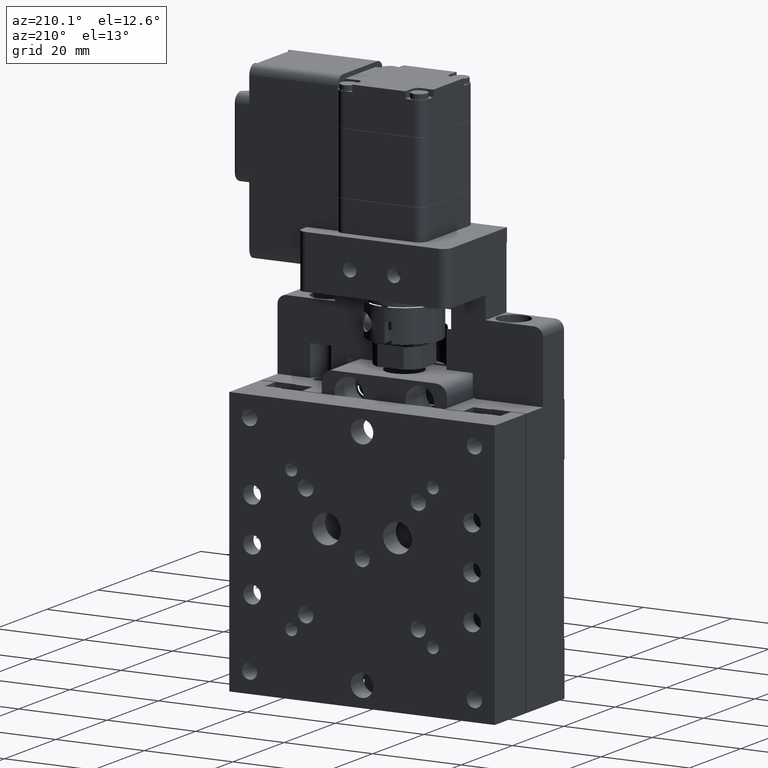
[diagram: clean part render]
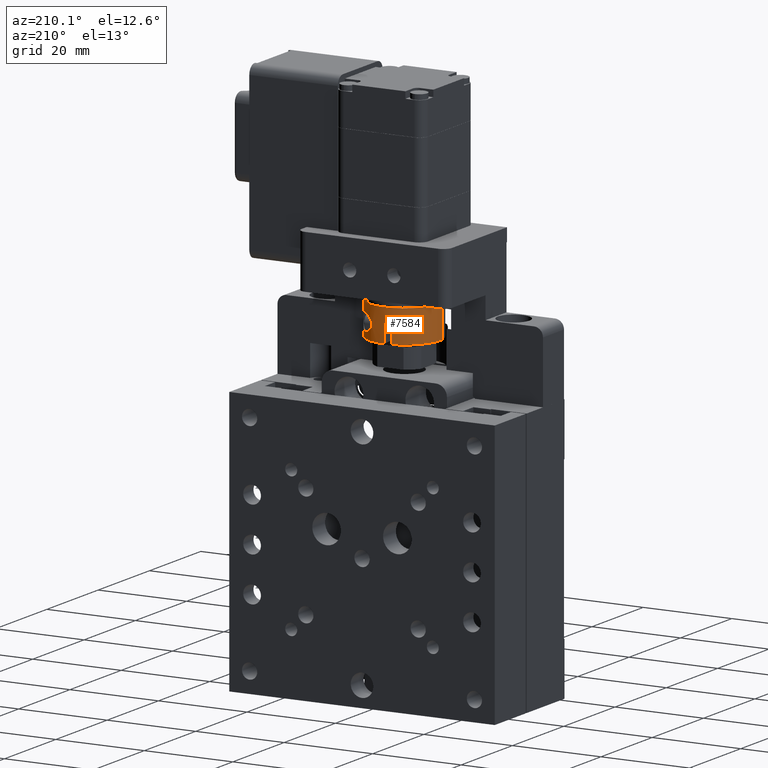
[diagram: same view with one face highlighted and labeled with its STEP entity id]
A machine part, auxiliary view. The second image highlights one B-rep face of the part: STEP entity #7584.
In plain terms, the highlighted cylindrical surface (partial cylindrical patch) has radius 8 mm, axis along (0, 0, 1).
Its self-contained STEP definition (entity closure, byte-faithful):
#605 = EDGE_CURVE ( 'NONE', #15255, #21160, #18002, .T. ) ;
#651 = AXIS2_PLACEMENT_3D ( 'NONE', #15535, #1704, #15754 ) ;
#671 = CARTESIAN_POINT ( 'NONE',  ( 2.563843015603363800, 3.671227825216857500, 109.1907045658230800 ) ) ;
#772 = EDGE_CURVE ( 'NONE', #4824, #15255, #820, .T. ) ;
#820 = CIRCLE ( 'NONE', #651, 8.000000000000016000 ) ;
#963 = CARTESIAN_POINT ( 'NONE',  ( 3.253231977934332600, 3.021636686349431100, 105.2500000000000600 ) ) ;
#1027 = CARTESIAN_POINT ( 'NONE',  ( -2.744601018819476900, 5.550351525083199200, 108.3500000000000100 ) ) ;
#1704 = DIRECTION ( 'NONE',  ( 0.0000000000000000000, 0.0000000000000000000, 1.000000000000000000 ) ) ;
#2147 = DIRECTION ( 'NONE',  ( 0.9936223791558217400, 0.1127588916260015600, 0.0000000000000000000 ) ) ;
#2299 = CARTESIAN_POINT ( 'NONE',  ( 1.796676726505589000, 4.247165923261738000, 105.6016043665611900 ) ) ;
#2332 = AXIS2_PLACEMENT_3D ( 'NONE', #7176, #8939, #12258 ) ;
#2370 = CARTESIAN_POINT ( 'NONE',  ( 0.5104007205627034700, 4.926269031218111200, 107.5862108928385400 ) ) ;
#2431 = CARTESIAN_POINT ( 'NONE',  ( 4.122356141375333600, 1.903070950409198300, 108.6508475646448800 ) ) ;
#2441 = CARTESIAN_POINT ( 'NONE',  ( -4.235034587553214700, 5.381213187644196000, 103.8500000000000100 ) ) ;
#2447 = CARTESIAN_POINT ( 'NONE',  ( 2.931823030202483700, 3.341293861722737000, 109.2500000000000100 ) ) ;
#2511 = CARTESIAN_POINT ( 'NONE',  ( 3.700058127775599700, 2.494682663363746200, 109.0878850605104300 ) ) ;
#2533 = CARTESIAN_POINT ( 'NONE',  ( 1.300210327585593600, 4.542574221805415900, 108.5703845569273500 ) ) ;
#2586 = CARTESIAN_POINT ( 'NONE',  ( 4.376827804189023400, 1.481605095224330700, 106.5562442289124200 ) ) ;
#2658 = CARTESIAN_POINT ( 'NONE',  ( 3.999341066104749500, 2.087248801137584000, 108.8273643018022200 ) ) ;
#2858 = DIRECTION ( 'NONE',  ( 0.9936223791558217400, 0.1127588916260015600, 0.0000000000000000000 ) ) ;
#3234 = VERTEX_POINT ( 'NONE', #1027 ) ;
#3704 = DIRECTION ( 'NONE',  ( 0.0000000000000000000, 0.0000000000000000000, 1.000000000000000000 ) ) ;
#4151 = CARTESIAN_POINT ( 'NONE',  ( 1.064482738544114700, 4.668697525048448100, 108.3735737157988400 ) ) ;
#4217 = CARTESIAN_POINT ( 'NONE',  ( 3.249499228880445400, 3.019907286267183600, 109.2406583743950500 ) ) ;
#4233 = CARTESIAN_POINT ( 'NONE',  ( 0.5427153638027482100, 4.912296348114718800, 106.8450221219715700 ) ) ;
#4295 = CARTESIAN_POINT ( 'NONE',  ( 0.6497537051098806200, 4.866086929647885900, 107.8871845753727000 ) ) ;
#4361 = CARTESIAN_POINT ( 'NONE',  ( 3.049655712054435000, 3.224103402299449700, 105.2500000000000100 ) ) ;
#4446 = CARTESIAN_POINT ( 'NONE',  ( 4.400439075495540000, 1.439068104143726500, 106.6923359942051700 ) ) ;
#4462 = EDGE_LOOP ( 'NONE', ( #6522, #16403, #18524, #11677, #12328, #14592, #15713, #5128 ) ) ;
#4525 = CARTESIAN_POINT ( 'NONE',  ( 4.438506499181726500, 1.369654998452614700, 107.5413333498952300 ) ) ;
#4824 = VERTEX_POINT ( 'NONE', #2441 ) ;
#4838 = VERTEX_POINT ( 'NONE', #22177 ) ;
#5128 = ORIENTED_EDGE ( 'NONE', *, *, #20611, .T. ) ;
#5152 = CARTESIAN_POINT ( 'NONE',  ( -10.54069863205410600, -3.350258678993689500, 111.2399457046751200 ) ) ;
#5436 = FACE_BOUND ( 'NONE', #21433, .T. ) ;
#5457 = VECTOR ( 'NONE', #12682, 1000.000000000000000 ) ;
#5590 = B_SPLINE_CURVE_WITH_KNOTS ( 'NONE', 3,
 ( #9600, #13226, #4217, #18358, #11376, #2511, #7767, #20305, #2658, #2431, #9753, #7831, #15090, #20222, #4525, #22085, #13148, #4446, #2586, #15017, #14946, #16794, #16866, #9521, #18597, #6142, #963, #4361 ),
 .UNSPECIFIED., .F., .F.,
 ( 4, 2, 2, 2, 2, 2, 2, 2, 2, 2, 2, 2, 2, 4 ),
 ( 0.007976545025443277500, 0.008402092913100485700, 0.008827640800757692200, 0.009253188688414900500, 0.009678736576072108700, 0.01010428446372931700, 0.01052983235138652500, 0.01138092812670094200, 0.01180647601435812900, 0.01223202390201531500, 0.01265757178967250400, 0.01308311967732969000, 0.01393421545264404000, 0.01478531122795839100 ),
 .UNSPECIFIED. ) ;
#5695 = CARTESIAN_POINT ( 'NONE',  ( -2.591719598807531900, -2.448187545985677900, 212.6852357320099100 ) ) ;
#5834 = LINE ( 'NONE', #7271, #17720 ) ;
#5856 = CARTESIAN_POINT ( 'NONE',  ( 2.811163861606882800, 3.461295402713917600, 105.2500000000000300 ) ) ;
#5920 = CARTESIAN_POINT ( 'NONE',  ( 0.7386206334630214300, 4.826566174171474300, 106.4846763492306800 ) ) ;
#6142 = CARTESIAN_POINT ( 'NONE',  ( 3.444350193660930000, 2.809242118754128100, 105.2874801711436100 ) ) ;
#6350 = DIRECTION ( 'NONE',  ( 0.0000000000000000000, 0.0000000000000000000, 1.000000000000000000 ) ) ;
#6382 = ORIENTED_EDGE ( 'NONE', *, *, #21702, .F. ) ;
#6522 = ORIENTED_EDGE ( 'NONE', *, *, #772, .T. ) ;
#6666 = AXIS2_PLACEMENT_3D ( 'NONE', #13415, #11797, #2858 ) ;
#7176 = CARTESIAN_POINT ( 'NONE',  ( -2.591719598807531900, -2.448187545985677900, 111.2399457046751200 ) ) ;
#7271 = CARTESIAN_POINT ( 'NONE',  ( 5.357259434439058900, -1.546116412977663200, 212.6852357320099100 ) ) ;
#7367 = CARTESIAN_POINT ( 'NONE',  ( -2.744601018819476900, 5.550351525083199200, 108.3500000000000100 ) ) ;
#7391 = EDGE_CURVE ( 'NONE', #3234, #9460, #11234, .T. ) ;
#7417 = VECTOR ( 'NONE', #19485, 1000.000000000000000 ) ;
#7584 = ADVANCED_FACE ( 'NONE', ( #5436, #15379 ), #22032, .T. ) ;
#7728 = CARTESIAN_POINT ( 'NONE',  ( -2.744601018819476900, 5.550351525083199200, 103.8500000000000100 ) ) ;
#7750 = EDGE_CURVE ( 'NONE', #4838, #9773, #17655, .T. ) ;
#7767 = CARTESIAN_POINT ( 'NONE',  ( 3.782115091226614800, 2.388149493418166200, 109.0338928623660300 ) ) ;
#7784 = CARTESIAN_POINT ( 'NONE',  ( 2.811085045131203900, 3.454080859962597800, 109.2374990567611000 ) ) ;
#7831 = CARTESIAN_POINT ( 'NONE',  ( 4.272105504593802100, 1.662284742929128100, 108.3287330700119800 ) ) ;
#7844 = AXIS2_PLACEMENT_3D ( 'NONE', #5695, #14268, #2147 ) ;
#7903 = CIRCLE ( 'NONE', #20633, 8.000000000000016000 ) ;
#8939 = DIRECTION ( 'NONE',  ( 0.0000000000000000000, 0.0000000000000000000, 1.000000000000000000 ) ) ;
#9187 = DIRECTION ( 'NONE',  ( 0.9936223791558217400, 0.1127588916260015600, 0.0000000000000000000 ) ) ;
#9390 = CARTESIAN_POINT ( 'NONE',  ( 0.5150864693722694300, 4.923934396153978100, 106.9230012488301800 ) ) ;
#9460 = VERTEX_POINT ( 'NONE', #21236 ) ;
#9465 = CARTESIAN_POINT ( 'NONE',  ( 0.9499597975609011000, 4.726050382086090600, 108.2642156408988000 ) ) ;
#9521 = CARTESIAN_POINT ( 'NONE',  ( 3.941073407847921000, 2.174851917330396000, 105.5871386927920100 ) ) ;
#9600 = CARTESIAN_POINT ( 'NONE',  ( 3.049655712054407900, 3.224103402299444400, 109.2500000000000100 ) ) ;
#9753 = CARTESIAN_POINT ( 'NONE',  ( 4.178027784762016400, 1.815449147105344200, 108.5489666428774900 ) ) ;
#9773 = VERTEX_POINT ( 'NONE', #20218 ) ;
#10097 = EDGE_CURVE ( 'NONE', #15499, #15450, #5834, .T. ) ;
#10499 = CARTESIAN_POINT ( 'NONE',  ( -4.235034587553214700, 5.381213187644196000, 108.3500000000000100 ) ) ;
#10877 = CARTESIAN_POINT ( 'NONE',  ( -2.591719598807531900, -2.448187545985677900, 103.8500000000000100 ) ) ;
#11234 = CIRCLE ( 'NONE', #6666, 8.000000000000016000 ) ;
#11376 = CARTESIAN_POINT ( 'NONE',  ( 3.528712718453427500, 2.705329807922160600, 109.1710637892231000 ) ) ;
#11513 = LINE ( 'NONE', #7367, #5457 ) ;
#11677 = ORIENTED_EDGE ( 'NONE', *, *, #10097, .F. ) ;
#11748 = ORIENTED_EDGE ( 'NONE', *, *, #7750, .F. ) ;
#11797 = DIRECTION ( 'NONE',  ( 0.0000000000000000000, 0.0000000000000000000, 1.000000000000000000 ) ) ;
#11819 = CARTESIAN_POINT ( 'NONE',  ( -10.54069863205412400, -3.350258678993691200, 212.6852357320099100 ) ) ;
#12094 = LINE ( 'NONE', #10499, #7417 ) ;
#12258 = DIRECTION ( 'NONE',  ( 0.9936223791558217400, 0.1127588916260015600, 0.0000000000000000000 ) ) ;
#12328 = ORIENTED_EDGE ( 'NONE', *, *, #13765, .T. ) ;
#12682 = DIRECTION ( 'NONE',  ( 0.0000000000000000000, 0.0000000000000000000, -1.000000000000000000 ) ) ;
#12860 = CARTESIAN_POINT ( 'NONE',  ( 2.563785086380061500, 3.677621967476530300, 105.2997625144065800 ) ) ;
#12945 = CARTESIAN_POINT ( 'NONE',  ( 0.4677915856256101800, 4.943658748930699800, 107.4197539896564300 ) ) ;
#13091 = CARTESIAN_POINT ( 'NONE',  ( 0.7426135072462409800, 4.824735218152406800, 108.0206695067212800 ) ) ;
#13148 = CARTESIAN_POINT ( 'NONE',  ( 4.431542710626970000, 1.382585998479123800, 106.9711693192006100 ) ) ;
#13226 = CARTESIAN_POINT ( 'NONE',  ( 3.150237502690077700, 3.124069811711875900, 109.2500000000000300 ) ) ;
#13415 = CARTESIAN_POINT ( 'NONE',  ( -2.591719598807531900, -2.448187545985677900, 108.3500000000000100 ) ) ;
#13765 = EDGE_CURVE ( 'NONE', #15499, #22944, #7903, .T. ) ;
#14268 = DIRECTION ( 'NONE',  ( 0.0000000000000000000, 0.0000000000000000000, 1.000000000000000000 ) ) ;
#14592 = ORIENTED_EDGE ( 'NONE', *, *, #22250, .F. ) ;
#14653 = CARTESIAN_POINT ( 'NONE',  ( 2.052038007166276500, 4.074103926432258000, 105.4771815228771000 ) ) ;
#14737 = CARTESIAN_POINT ( 'NONE',  ( 0.6459927606697375400, 4.867743115103061200, 106.6190114298150200 ) ) ;
#14882 = CARTESIAN_POINT ( 'NONE',  ( 1.798485635713911200, 4.245979050379321300, 108.8993481894597600 ) ) ;
#14946 = CARTESIAN_POINT ( 'NONE',  ( 4.274867539667520900, 1.657667759590361500, 106.1788860111630900 ) ) ;
#15017 = CARTESIAN_POINT ( 'NONE',  ( 4.314441918305814000, 1.590234944326732500, 106.3009952429820500 ) ) ;
#15090 = CARTESIAN_POINT ( 'NONE',  ( 4.311204335375840000, 1.595784139388527700, 108.2099597745377800 ) ) ;
#15200 = VECTOR ( 'NONE', #6350, 1000.000000000000000 ) ;
#15255 = VERTEX_POINT ( 'NONE', #19551 ) ;
#15379 = FACE_OUTER_BOUND ( 'NONE', #4462, .T. ) ;
#15450 = VERTEX_POINT ( 'NONE', #20337 ) ;
#15499 = VERTEX_POINT ( 'NONE', #22194 ) ;
#15535 = CARTESIAN_POINT ( 'NONE',  ( -2.591719598807531900, -2.448187545985677900, 103.8500000000000100 ) ) ;
#15713 = ORIENTED_EDGE ( 'NONE', *, *, #7391, .T. ) ;
#15754 = DIRECTION ( 'NONE',  ( 0.9936223791558217400, 0.1127588916260015600, 0.0000000000000000000 ) ) ;
#16403 = ORIENTED_EDGE ( 'NONE', *, *, #605, .T. ) ;
#16521 = CARTESIAN_POINT ( 'NONE',  ( 2.055565154863955100, 4.071476404808067600, 109.0242010135952300 ) ) ;
#16667 = CARTESIAN_POINT ( 'NONE',  ( 2.436546690426701000, 3.776148284269411600, 109.1560442282386100 ) ) ;
#16794 = CARTESIAN_POINT ( 'NONE',  ( 4.180956641987651600, 1.810793935303756800, 105.9568041353109900 ) ) ;
#16866 = CARTESIAN_POINT ( 'NONE',  ( 4.126882489971010600, 1.896102448876209900, 105.8566386772803700 ) ) ;
#17655 = B_SPLINE_CURVE_WITH_KNOTS ( 'NONE', 3,
 ( #19934, #5856, #12860, #14653, #2299, #18232, #20018, #5920, #14737, #4233, #9390, #20088, #18377, #12945, #2370, #4295, #13091, #9465, #4151, #2533, #21866, #14882, #16521, #16667, #671, #7784, #2447, #20160 ),
 .UNSPECIFIED., .F., .F.,
 ( 4, 2, 2, 2, 2, 2, 2, 2, 2, 2, 2, 2, 2, 4 ),
 ( 6.133173666733496700E-019, 0.0009970681281804320200, 0.001994136256360863200, 0.002991204384541294600, 0.003489738448631526100, 0.003739005480676623200, 0.003988272512721720300, 0.004486806576811915400, 0.004985340640902109600, 0.005483874704992304700, 0.005982408769082498900, 0.006979476897262888200, 0.007478010961353084200, 0.007976545025443277500 ),
 .UNSPECIFIED. ) ;
#17720 = VECTOR ( 'NONE', #3704, 1000.000000000000000 ) ;
#18002 = LINE ( 'NONE', #11819, #15200 ) ;
#18182 = DIRECTION ( 'NONE',  ( 0.0000000000000000000, 0.0000000000000000000, 1.000000000000000000 ) ) ;
#18232 = CARTESIAN_POINT ( 'NONE',  ( 1.295346355679621900, 4.550133584946510500, 105.9228367725355000 ) ) ;
#18311 = EDGE_CURVE ( 'NONE', #15450, #21160, #20827, .T. ) ;
#18358 = CARTESIAN_POINT ( 'NONE',  ( 3.438643285891673800, 2.810578655918454700, 109.2010872994677900 ) ) ;
#18377 = CARTESIAN_POINT ( 'NONE',  ( 0.4669889652649291100, 4.943990888272040300, 107.1701778522282400 ) ) ;
#18524 = ORIENTED_EDGE ( 'NONE', *, *, #18311, .F. ) ;
#18597 = CARTESIAN_POINT ( 'NONE',  ( 3.789099870691811800, 2.385015131007548900, 105.4558493459313800 ) ) ;
#19485 = DIRECTION ( 'NONE',  ( 0.0000000000000000000, 0.0000000000000000000, -1.000000000000000000 ) ) ;
#19551 = CARTESIAN_POINT ( 'NONE',  ( -10.54069863205410400, -3.350258678993689000, 103.8500000000000100 ) ) ;
#19934 = CARTESIAN_POINT ( 'NONE',  ( 3.049655712054435000, 3.224103402299449700, 105.2500000000000100 ) ) ;
#20018 = CARTESIAN_POINT ( 'NONE',  ( 1.050013617023512600, 4.678565585082740300, 106.1169866493295000 ) ) ;
#20088 = CARTESIAN_POINT ( 'NONE',  ( 0.4770112337663515700, 4.939864765162785600, 107.0855321969888500 ) ) ;
#20160 = CARTESIAN_POINT ( 'NONE',  ( 3.049655712054407900, 3.224103402299444400, 109.2500000000000100 ) ) ;
#20218 = CARTESIAN_POINT ( 'NONE',  ( 3.049655712054407900, 3.224103402299444400, 109.2500000000000100 ) ) ;
#20222 = CARTESIAN_POINT ( 'NONE',  ( 4.406579933029815900, 1.429964977524043900, 107.8263334609728200 ) ) ;
#20305 = CARTESIAN_POINT ( 'NONE',  ( 3.931483712109776100, 2.184710378535180500, 108.9035902298967500 ) ) ;
#20337 = CARTESIAN_POINT ( 'NONE',  ( 5.357259434439058900, -1.546116412977663200, 111.2399457046751200 ) ) ;
#20611 = EDGE_CURVE ( 'NONE', #9460, #4824, #12094, .T. ) ;
#20633 = AXIS2_PLACEMENT_3D ( 'NONE', #10877, #18182, #9187 ) ;
#20827 = CIRCLE ( 'NONE', #2332, 8.000000000000017800 ) ;
#21160 = VERTEX_POINT ( 'NONE', #5152 ) ;
#21236 = CARTESIAN_POINT ( 'NONE',  ( -4.235034587553216500, 5.381213187644197800, 108.3500000000000100 ) ) ;
#21433 = EDGE_LOOP ( 'NONE', ( #11748, #6382 ) ) ;
#21702 = EDGE_CURVE ( 'NONE', #9773, #4838, #5590, .T. ) ;
#21866 = CARTESIAN_POINT ( 'NONE',  ( 1.422576080413505300, 4.473291508744202900, 108.6587890450082600 ) ) ;
#22032 = CYLINDRICAL_SURFACE ( 'NONE', #7844, 8.000000000000017800 ) ;
#22085 = CARTESIAN_POINT ( 'NONE',  ( 4.439097976664894100, 1.368565575604861100, 107.1123701340460200 ) ) ;
#22177 = CARTESIAN_POINT ( 'NONE',  ( 3.049655712054435000, 3.224103402299449700, 105.2500000000000100 ) ) ;
#22194 = CARTESIAN_POINT ( 'NONE',  ( 5.357259434439040300, -1.546116412977665200, 103.8500000000000100 ) ) ;
#22250 = EDGE_CURVE ( 'NONE', #3234, #22944, #11513, .T. ) ;
#22944 = VERTEX_POINT ( 'NONE', #7728 ) ;